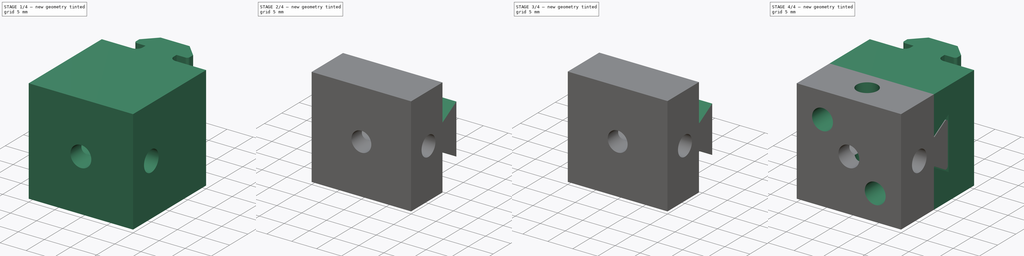
[diagram: build sequence overview — one tinted view per stage of 4, left to right]
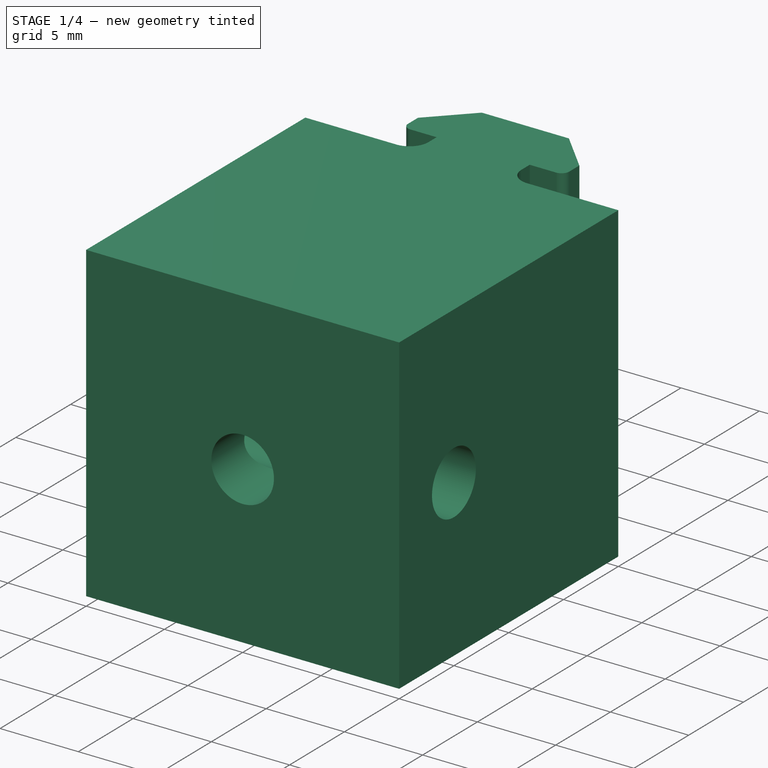
[diagram: stage 1 of 4 — iso view after this stage's code; geometry added in this stage tinted green]
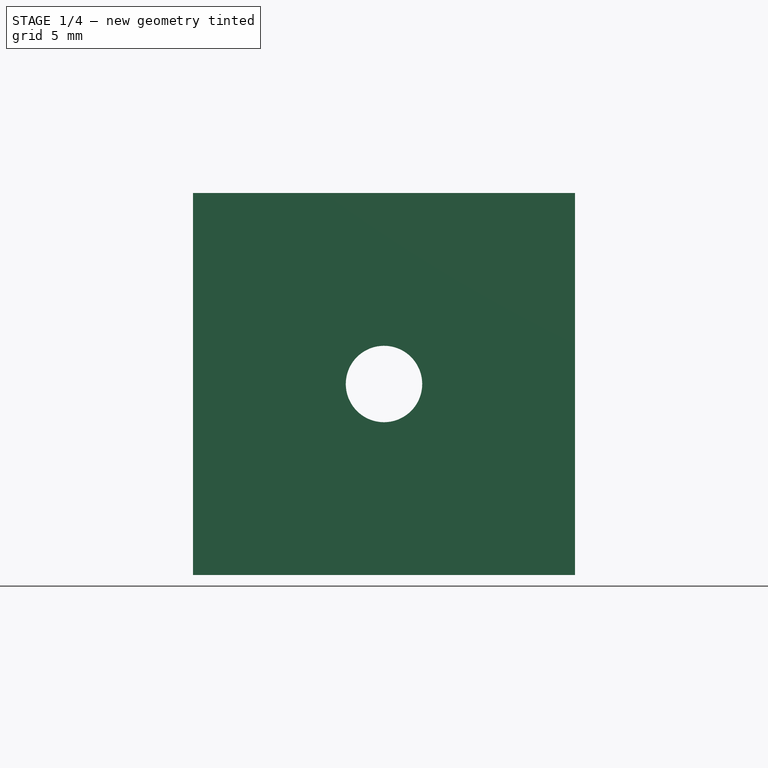
[diagram: stage 1 of 4 — front view after this stage's code; geometry added in this stage tinted green]
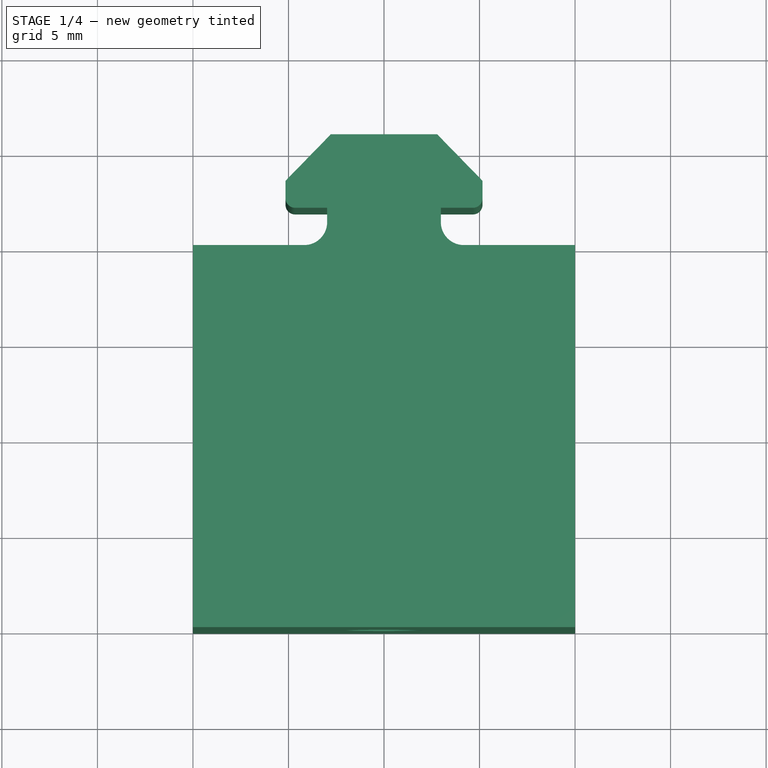
[diagram: stage 1 of 4 — top view after this stage's code; geometry added in this stage tinted green]
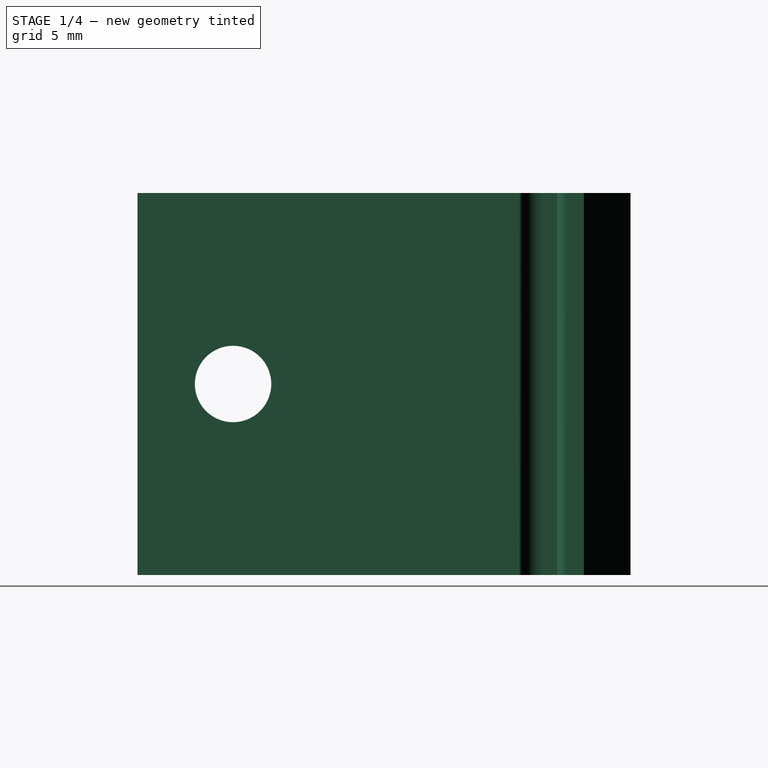
[diagram: stage 1 of 4 — right view after this stage's code; geometry added in this stage tinted green]
FCSTD DOCUMENT  (FreeCAD 0.20R29177 (Git))
Label: AT_005a_Vslotprofil_Clamp2
License: All rights reserved
LicenseURL: http://en.wikipedia.org/wiki/All_rights_reserved
objects: PartDesign::Pocket×7, Sketcher::SketchObject×6, PartDesign::Body×3, Part::FeaturePython×3, PartDesign::SubShapeBinder×1, PartDesign::Pad×1, PartDesign::Mirrored×1, PartDesign::ShapeBinder×1, Part::Extrusion×1, App::DocumentObjectGroup×1, PartDesign::FeatureBase×1, PartDesign::Fillet×1
note: 35 computed .brp shape members not serialized (recipe doc carries the construction recipe); baked Part::Feature solids carry a one-line shape summary decoded from their .brp

FEATURE [PartDesign::SubShapeBinder] Binder
  BindCopyOnChange = 0
  BindMode = 2
  ClaimChildren = false
  Context = -> Body [Binder.]
  Fuse = false
  MakeFace = true
  OffsetFill = false
  OffsetIntersection = false
  OffsetJoinType = 0
  OffsetOpenResult = false
  PartialLoad = false
  Relative = true
  _Version = 2
FEATURE [Sketcher::SketchObject] Sketch
  ExternalGeometry = -> [Binder]
  FullyConstrained = false
  MapMode = 5
  Placement = pos=(0,0,364) rot=(0,0,1;0rad)
  Support = -> [Binder]
  sketch-geometry (14):
    g0: LineSegment StartX=-2.975 StartY=-8.8 StartZ=0 EndX=-2.975 EndY=-8.05 EndZ=0
    g1: LineSegment StartX=-2.975 StartY=-8.05 StartZ=0 EndX=-4.65527 EndY=-8.05 EndZ=0
    g2: LineSegment StartX=-5.15527 StartY=-7.55 StartZ=0 EndX=-5.15527 EndY=-6.63671 EndZ=0
    g3: LineSegment StartX=-5.15527 StartY=-6.63671 StartZ=0 EndX=-2.78152 EndY=-4.2 EndZ=0
    g4: LineSegment StartX=-2.78152 StartY=-4.2 StartZ=0 EndX=0 EndY=-4.2 EndZ=0
    g5: LineSegment StartX=0 StartY=-4.2 StartZ=0 EndX=0 EndY=-10 EndZ=0
    g6: ArcOfCircle CenterX=-4.65527 CenterY=-7.55 CenterZ=0 NormalX=0 NormalY=0 NormalZ=1 AngleXU=0 Radius=0.5 StartAngle=3.14159 EndAngle=4.71239
    g7: GeomPoint X=-5.15527 Y=-8.05 Z=0
    g8: LineSegment StartX=-4.175 StartY=-10 StartZ=0 EndX=-10 EndY=-10 EndZ=0
    g9: LineSegment StartX=-10 StartY=-10 StartZ=0 EndX=-10 EndY=-30 EndZ=0
    g10: LineSegment StartX=-10 StartY=-30 StartZ=0 EndX=0 EndY=-30 EndZ=0
    g11: LineSegment StartX=0 StartY=-30 StartZ=0 EndX=0 EndY=-10 EndZ=0
    g12: ArcOfCircle CenterX=-4.175 CenterY=-8.8 CenterZ=0 NormalX=0 NormalY=0 NormalZ=1 AngleXU=0 Radius=1.2 StartAngle=4.71239 EndAngle=6.28319
    g13: GeomPoint X=-2.975 Y=-10 Z=0
  constraints (36):
    c: Vertical(g0)
    c: Coincident(g0,g1)
    c: Horizontal(g1)
    c: Vertical(g2)
    c: Coincident(g2,g3)
    c: Coincident(g3,g4)
    c: PointOnObject(g4,g-2)
    c: Horizontal(g4)
    c: Coincident(g4,g5)
    c: PointOnObject(g5,g-2)
    c: DistanceY(g4,g-5) = 0.3
    c: Distance(g-12,g3) = 0.3
    c: DistanceY(g-17,g7) = 0.15
    c: Distance(g-17,g0) = 0.15
    c: PointOnObject(g7,g1)
    c: PointOnObject(g7,g2)
    c: Tangent(g1,g6) = 1.5708
    c: Tangent(g2,g6) = 1.5708
    c: Radius(g6) = 0.5
    c: Horizontal(g-16,g13)
    c: Horizontal(g13,g5)
    c: Horizontal(g8)
    c: Coincident(g8,g9)
    c: Vertical(g9)
    c: Coincident(g9,g10)
    c: PointOnObject(g10,g-2)
    c: Coincident(g10,g11)
    c: Coincident(g11,g5)
    c: Vertical(g8,g-18)
    c: DistanceY(g9,g9) = 20
    c: Horizontal(g10)
    c: PointOnObject(g13,g8)
    c: PointOnObject(g13,g0)
    c: Tangent(g8,g12) = 1.5708
    c: Tangent(g0,g12) = -1.5708
    c: Radius(g12) = 1.2
FEATURE [PartDesign::Pad] Pad
  Direction = (0,0,1)
  Length = 20
  Length2 = 10
  Profile = -> Sketch
  ReferenceAxis = -> Sketch [N_Axis]
  Type = 0
FEATURE [PartDesign::Mirrored] Mirrored
  BaseFeature = -> Pad
  MirrorPlane = -> Sketch [V_Axis]
  Originals = -> [Pad]
FEATURE [Sketcher::SketchObject] Sketch001
  ExternalGeometry = -> [Mirrored]
  FullyConstrained = true
  MapMode = 5
  Placement = pos=(0,-30,0) rot=(1,0,0;1.5708rad)
  Support = -> [Mirrored]
  sketch-geometry (1):
    g0: Circle CenterX=0 CenterY=374 CenterZ=0 NormalX=0 NormalY=0 NormalZ=1 AngleXU=0 Radius=2
  constraints (3):
    c: PointOnObject(g0,g-3)
    c: Diameter(g0) = 4
    c: DistanceY(g-3,g0) = 10
FEATURE [PartDesign::Pocket] Pocket
  BaseFeature = -> Mirrored
  Direction = (0,1,-2e-16)
  Length = 5
  Length2 = 5
  Profile = -> Sketch001
  ReferenceAxis = -> Sketch001 [N_Axis]
  Type = 1
FEATURE [Sketcher::SketchObject] Sketch002
  ExternalGeometry = -> [Pocket]
  FullyConstrained = true
  MapMode = 5
  Placement = pos=(10,0,0) rot=(0.57735,0.57735,0.57735;2.0944rad)
  Support = -> [Pocket]
  sketch-geometry (1):
    g0: Circle CenterX=-25 CenterY=374 CenterZ=0 NormalX=0 NormalY=0 NormalZ=1 AngleXU=0 Radius=2
  constraints (3):
    c: DistanceX(g-3,g0) = 5
    c: DistanceY(g-3,g0) = 10
    c: Diameter(g0) = 4
FEATURE [PartDesign::Pocket] Pocket001
  BaseFeature = -> Pocket
  Direction = (-1,0,0)
  Length = 5
  Length2 = 5
  Profile = -> Sketch002
  ReferenceAxis = -> Sketch002 [N_Axis]
  Type = 1
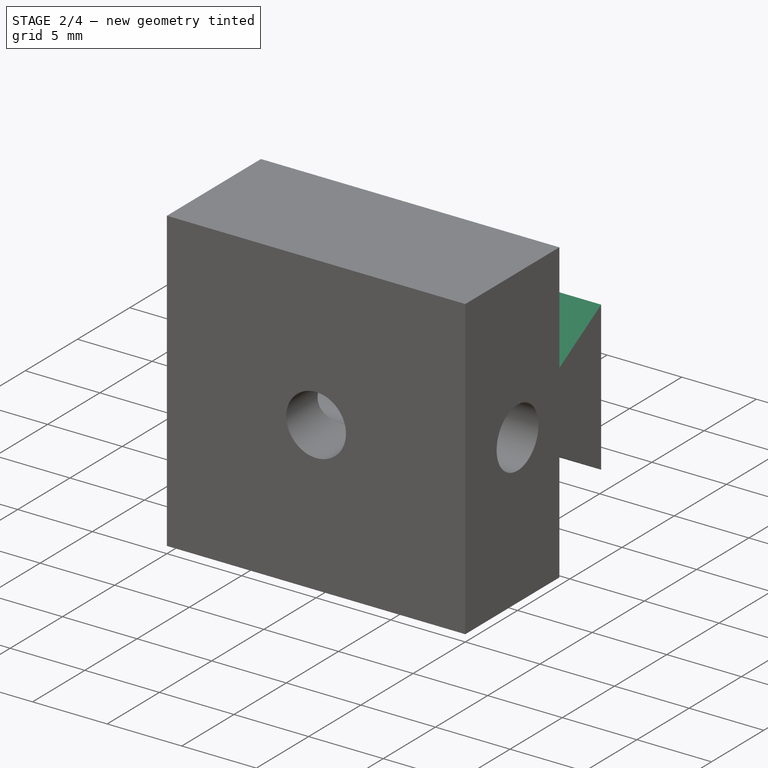
[diagram: stage 2 of 4 — iso view after this stage's code; geometry added in this stage tinted green]
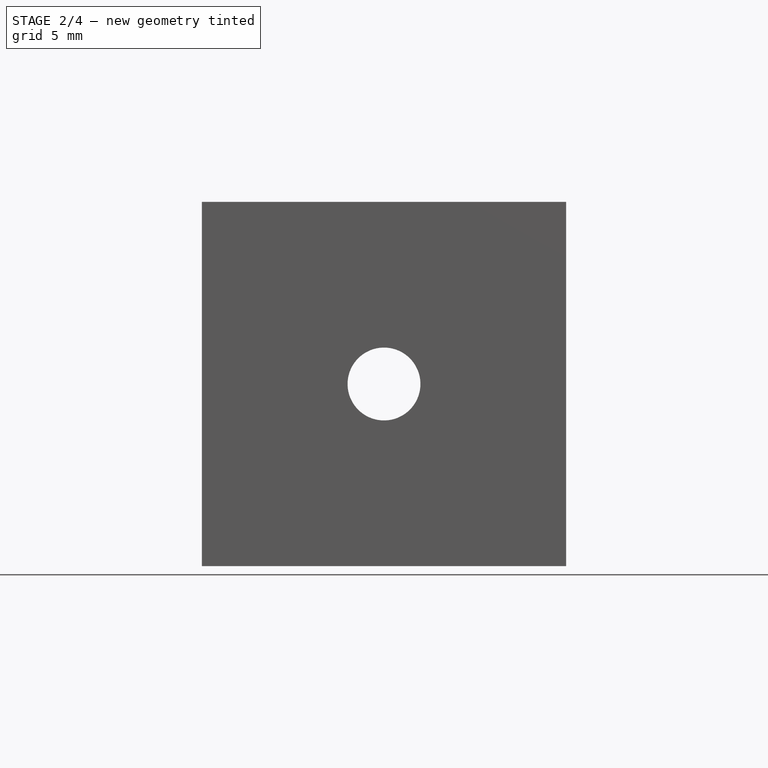
[diagram: stage 2 of 4 — front view after this stage's code; geometry added in this stage tinted green]
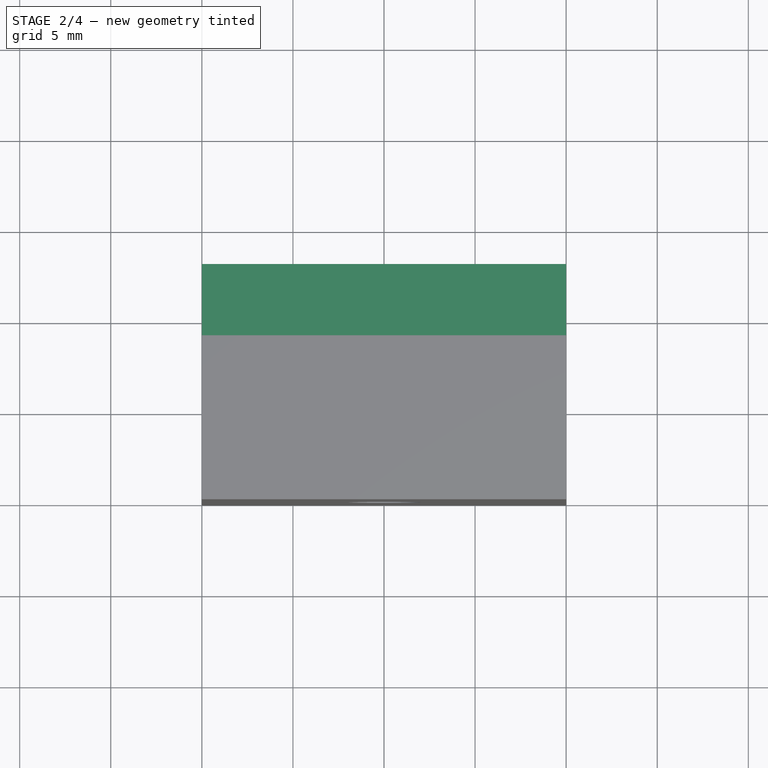
[diagram: stage 2 of 4 — top view after this stage's code; geometry added in this stage tinted green]
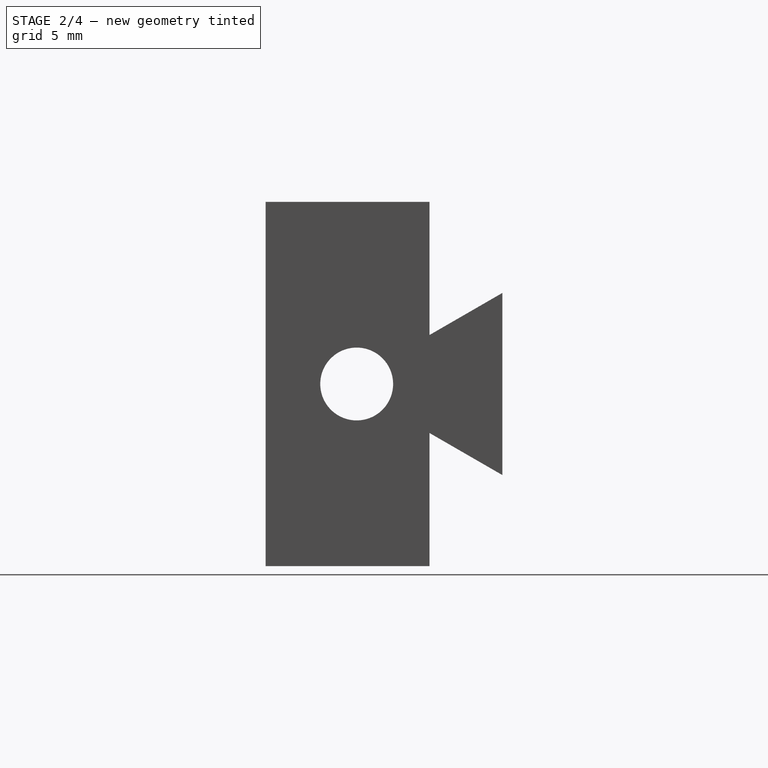
[diagram: stage 2 of 4 — right view after this stage's code; geometry added in this stage tinted green]
FEATURE [PartDesign::Body] Body
  Group = -> [Binder,Sketch,Pad,Mirrored,Sketch001,Pocket,Sketch002,Pocket001]
  Origin = -> Origin
  Tip = -> Pocket001
FEATURE [PartDesign::ShapeBinder] ShapeBinder
  Support = -> [Pocket001]
  TraceSupport = false
FEATURE [Sketcher::SketchObject] Sketch003
  ExternalGeometry = -> [ShapeBinder]
  FullyConstrained = false
  MapMode = 5
  Placement = pos=(10,0,0) rot=(0.57735,0.57735,0.57735;2.0944rad)
  Support = -> [ShapeBinder]
  sketch-geometry (6):
    g0: LineSegment StartX=-21 StartY=388.254 StartZ=0 EndX=-21 EndY=376.691 EndZ=0
    g1: LineSegment StartX=-21 StartY=376.691 StartZ=0 EndX=-17 EndY=379 EndZ=0
    g2: LineSegment StartX=-17 StartY=379 StartZ=0 EndX=-17 EndY=369 EndZ=0
    g3: LineSegment StartX=-17 StartY=369 StartZ=0 EndX=-21 EndY=371.309 EndZ=0
    g4: LineSegment StartX=-21 StartY=371.309 StartZ=0 EndX=-21 EndY=358.466 EndZ=0
    g5: GeomPoint X=-21 Y=374 Z=0
  constraints (15):
    c: Vertical(g0)
    c: Coincident(g0,g1)
    c: Coincident(g1,g2)
    c: Vertical(g2)
    c: Coincident(g2,g3)
    c: Coincident(g3,g4)
    c: Vertical(g4)
    c: Vertical(g3,g0)
    c: Equal(g1,g3)
    c: Angle(g4,g3) = 1.0472
    c: DistanceY(g2,g2) = 10
    c: Symmetric(g3,g0,g5)
    c: Horizontal(g-3,g5)
    c: DistanceX(g-3,g0) = 4
    c: DistanceX(g3,g2) = 4
FEATURE [PartDesign::Body] Body001
  Group = -> [ShapeBinder,Sketch003]
  Origin = -> Origin001
FEATURE [Part::Extrusion] Extrude
  Base = -> Sketch003
  Dir = (1,0,0)
  DirMode = 0
  FaceMakerClass = Part::FaceMakerBullseye
  LengthFwd = -25
  LengthRev = 0
  Solid = false
  Symmetric = false
FEATURE [Part::FeaturePython] Slice  # WARN: FeaturePython — macro-defined, semantics opaque (R4)
  Base = -> Body
  Mode = 1
  Tolerance = 0
  Tools = -> [Extrude]
FEATURE [Part::FeaturePython] Slice_child1  label="Slice.1"  # WARN: FeaturePython — macro-defined, semantics opaque (R4)
  Base = -> Slice
  FilterType = 1
  Invert = false
  OverrideMaxVal = 0
  WindowFrom = 80
  WindowTo = 100
  items = 1
FEATURE [App::DocumentObjectGroup] GrExplode_Slice  label="Exploded Slice"
  Group = -> [Slice_child0,Slice_child1]
FEATURE [PartDesign::FeatureBase] BaseFeature
  BaseFeature = -> Slice_child1
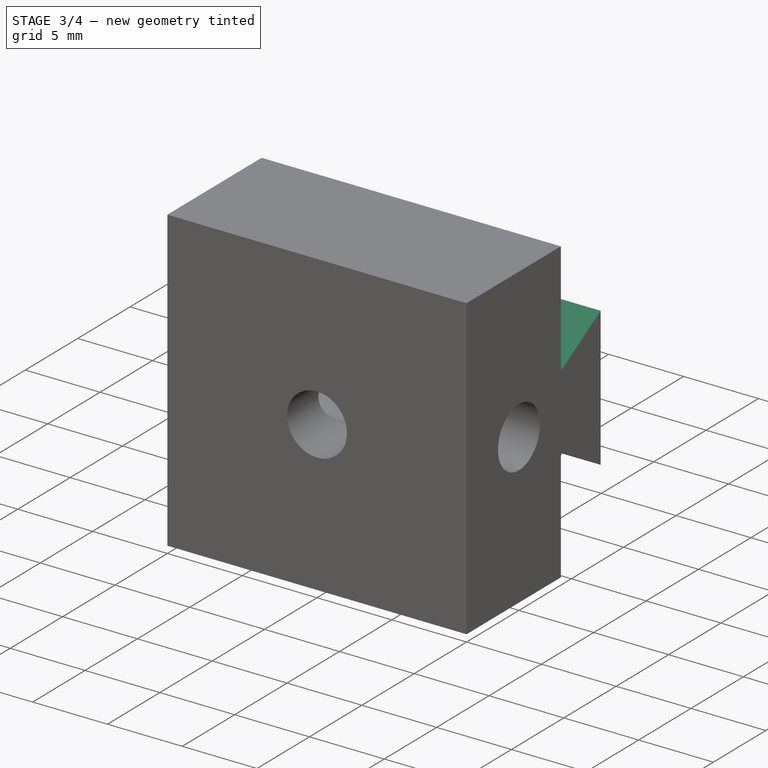
[diagram: stage 3 of 4 — iso view after this stage's code; geometry added in this stage tinted green]
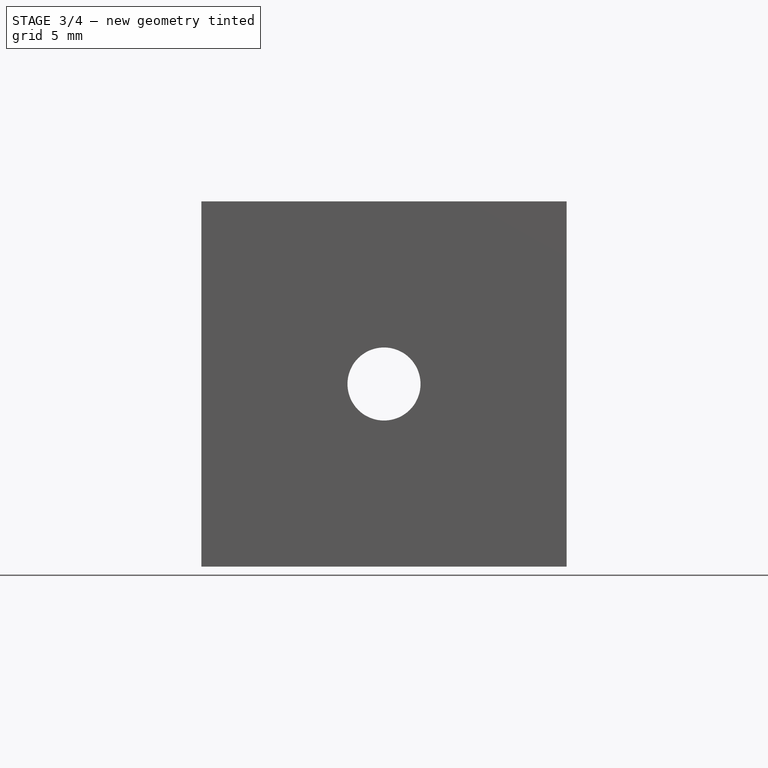
[diagram: stage 3 of 4 — front view after this stage's code; geometry added in this stage tinted green]
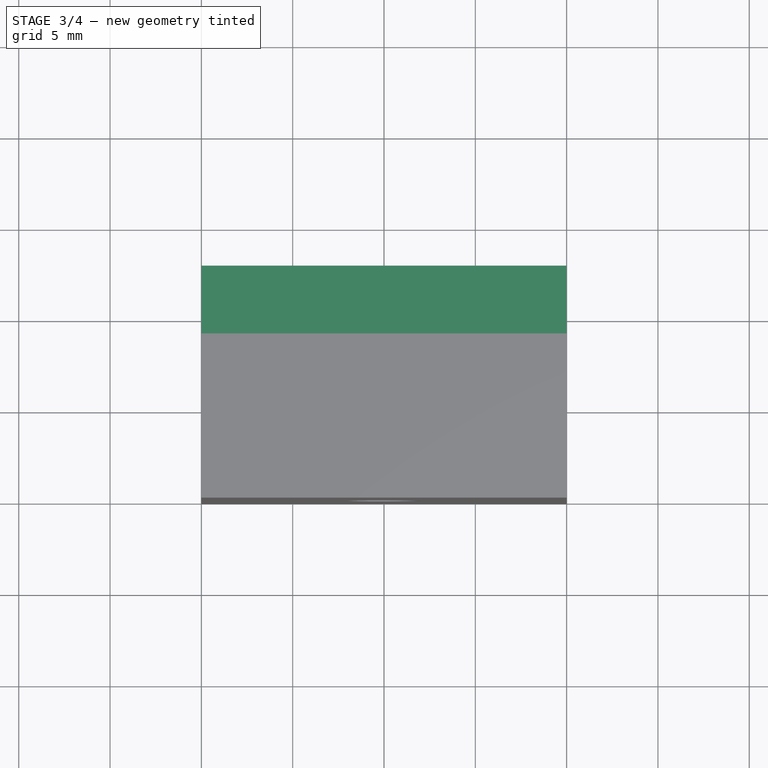
[diagram: stage 3 of 4 — top view after this stage's code; geometry added in this stage tinted green]
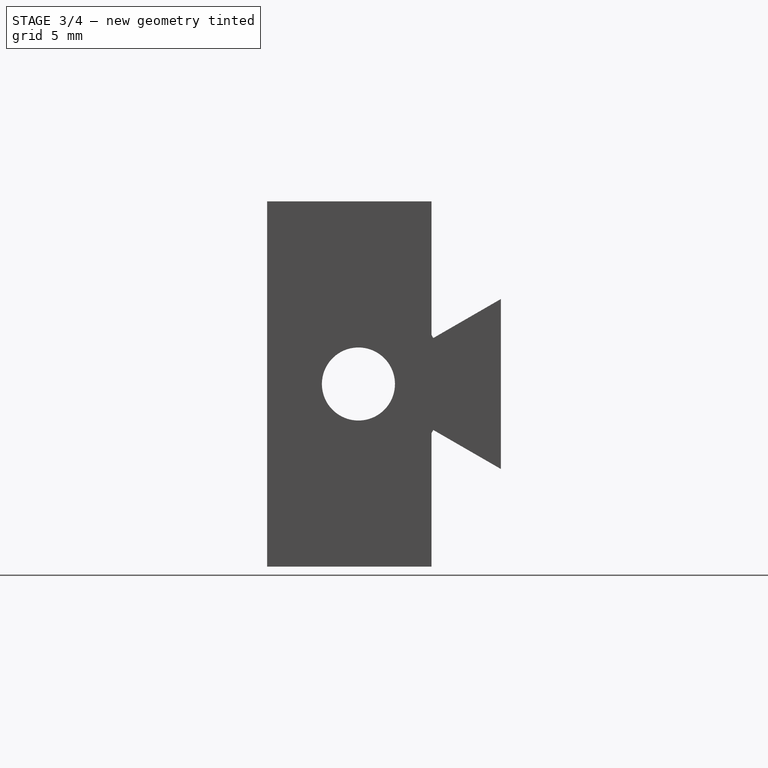
[diagram: stage 3 of 4 — right view after this stage's code; geometry added in this stage tinted green]
FEATURE [PartDesign::Pocket] Pocket002
  BaseFeature = -> BaseFeature
  Direction = (0,0.5,-0.866025)
  Length = 0.2
  Length2 = 5
  Profile = -> BaseFeature [Face12]
  Type = 0
FEATURE [PartDesign::Pocket] Pocket003
  BaseFeature = -> Pocket002
  Direction = (0,0.5,0.866025)
  Length = 0.2
  Length2 = 5
  Profile = -> Pocket002 [Face7]
  Type = 0
FEATURE [PartDesign::Pocket] Pocket004
  BaseFeature = -> Pocket003
  Direction = (0,-1,0)
  Length = 0.2
  Length2 = 5
  Profile = -> Pocket003 [Face14]
  Type = 0
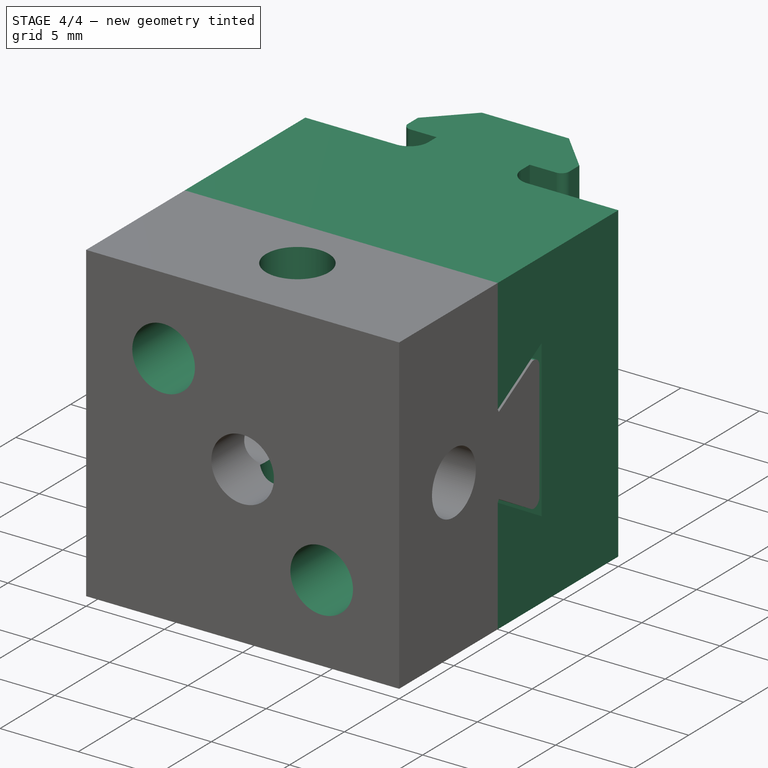
[diagram: stage 4 of 4 — iso view after this stage's code; geometry added in this stage tinted green]
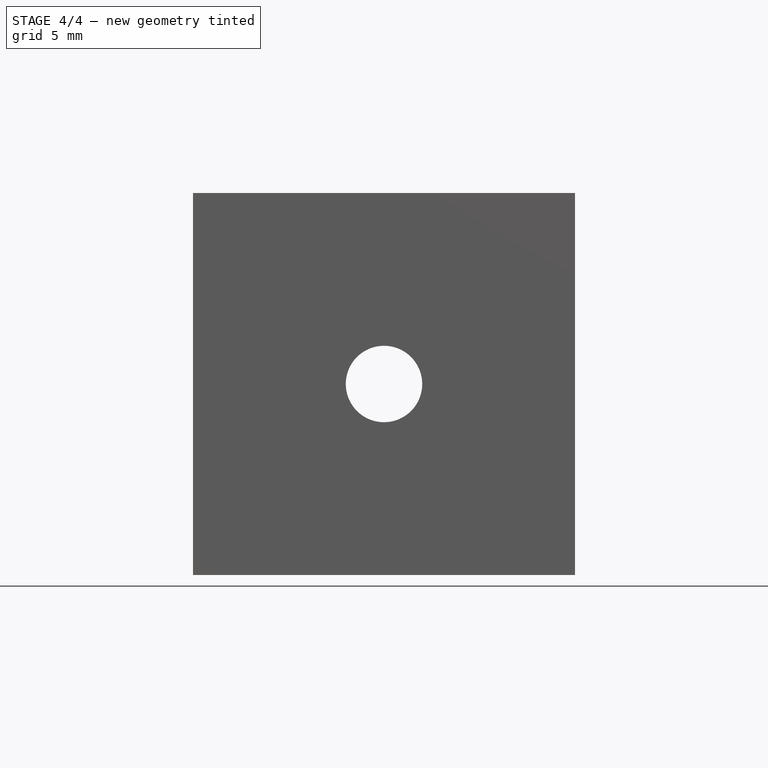
[diagram: stage 4 of 4 — front view after this stage's code; geometry added in this stage tinted green]
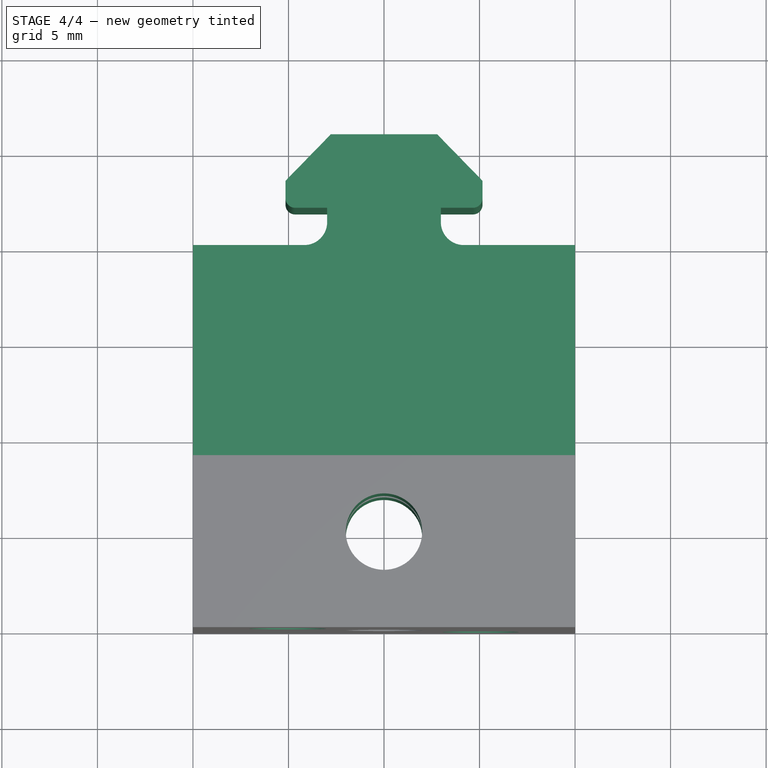
[diagram: stage 4 of 4 — top view after this stage's code; geometry added in this stage tinted green]
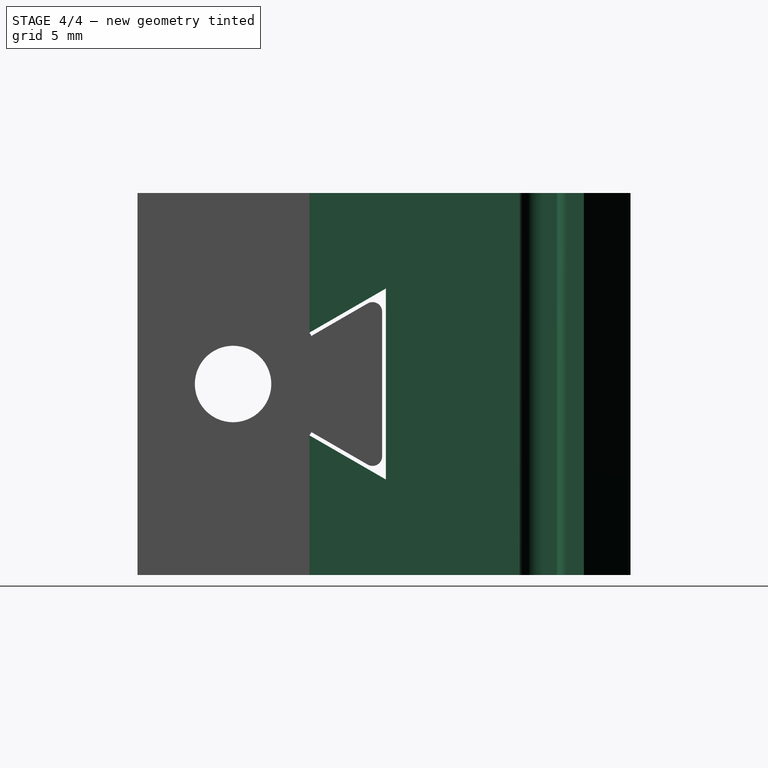
[diagram: stage 4 of 4 — right view after this stage's code; geometry added in this stage tinted green]
FEATURE [Part::FeaturePython] Slice_child0  label="Slice.0"  # WARN: FeaturePython — macro-defined, semantics opaque (R4)
  Base = -> Slice
  FilterType = 1
  Invert = false
  OverrideMaxVal = 0
  WindowFrom = 80
  WindowTo = 100
  items = 0
FEATURE [PartDesign::Fillet] Fillet
  Base = -> Pocket004 [Edge47,Edge48]
  BaseFeature = -> Pocket004
  Radius = 0.5
  SupportTransform = false
  UseAllEdges = false
FEATURE [Sketcher::SketchObject] Sketch004
  ExternalGeometry = -> [Fillet]
  FullyConstrained = true
  MapMode = 5
  Placement = pos=(0,0,384) rot=(0,0,1;0rad)
  Support = -> [Fillet]
  sketch-geometry (1):
    g0: Circle CenterX=0 CenterY=-25 CenterZ=0 NormalX=0 NormalY=0 NormalZ=1 AngleXU=0 Radius=2
  constraints (3):
    c: PointOnObject(g0,g-2)
    c: DistanceY(g-3,g0) = 5
    c: Diameter(g0) = 4
FEATURE [PartDesign::Pocket] Pocket005
  BaseFeature = -> Fillet
  Direction = (0,0,-1)
  Length = 5
  Length2 = 5
  Profile = -> Sketch004
  ReferenceAxis = -> Sketch004 [N_Axis]
  Type = 1
FEATURE [Sketcher::SketchObject] Sketch005
  ExternalGeometry = -> [Pocket005]
  FullyConstrained = true
  MapMode = 5
  Placement = pos=(0,-30,0) rot=(1,0,0;1.5708rad)
  Support = -> [Pocket005]
  sketch-geometry (3):
    g0: LineSegment StartX=10 StartY=364 StartZ=0 EndX=-10 EndY=384 EndZ=0
    g1: Circle CenterX=-5.05025 CenterY=379.05 CenterZ=0 NormalX=0 NormalY=0 NormalZ=1 AngleXU=0 Radius=2
    g2: Circle CenterX=5.05025 CenterY=368.95 CenterZ=0 NormalX=0 NormalY=0 NormalZ=1 AngleXU=0 Radius=2
  constraints (8):
    c: Coincident(g0,g-4)
    c: Coincident(g0,g-3)
    c: PointOnObject(g1,g0)
    c: PointOnObject(g2,g0)
    c: Distance(g0,g1) = 7
    c: Distance(g2,g0) = 7
    c: Equal(g1,g2)
    c: Diameter(g1) = 4
FEATURE [PartDesign::Pocket] Pocket006
  BaseFeature = -> Pocket005
  Direction = (0,1,-2e-16)
  Length = 5
  Length2 = 5
  Profile = -> Sketch005
  ReferenceAxis = -> Sketch005 [N_Axis]
  Type = 1
FEATURE [PartDesign::Body] Body002
  BaseFeature = -> Slice_child1
  Group = -> [BaseFeature,Pocket002,Pocket003,Pocket004,Fillet,Sketch004,Pocket005,Sketch005,Pocket006]
  Origin = -> Origin002
  Tip = -> Pocket006
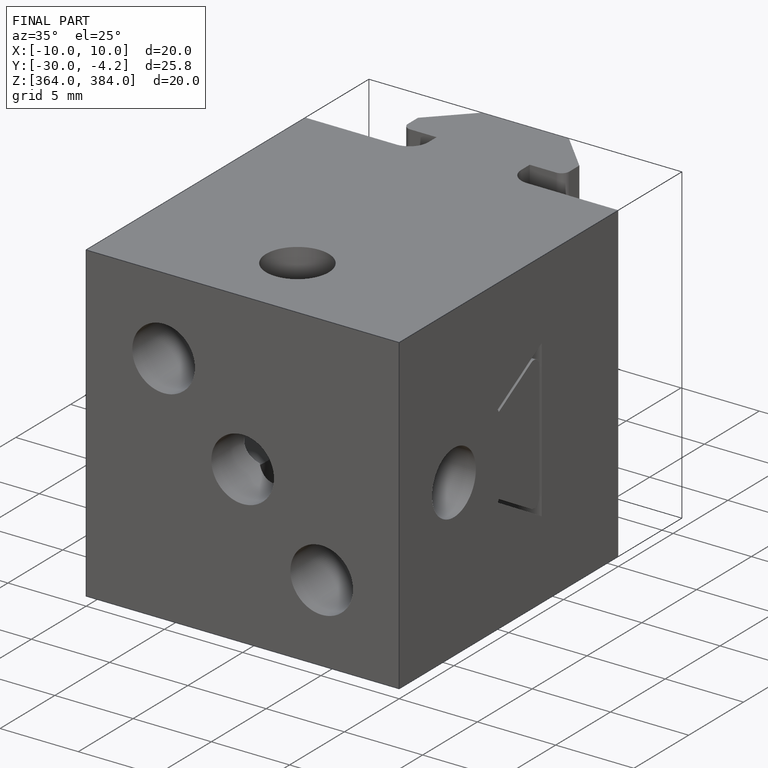
[diagram: finished part — iso view with bounding-box wireframe]
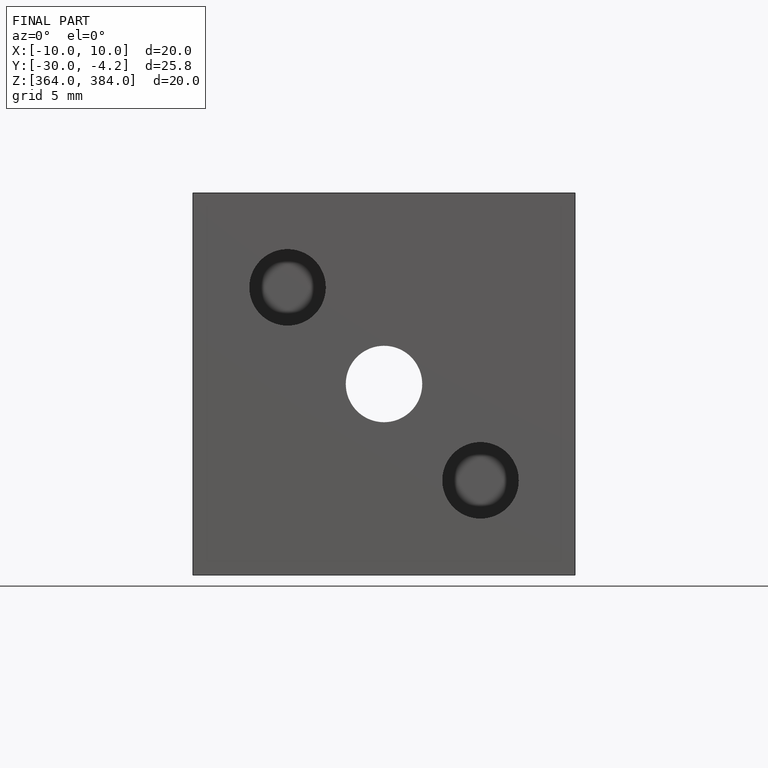
[diagram: finished part — front view with bounding-box wireframe]
